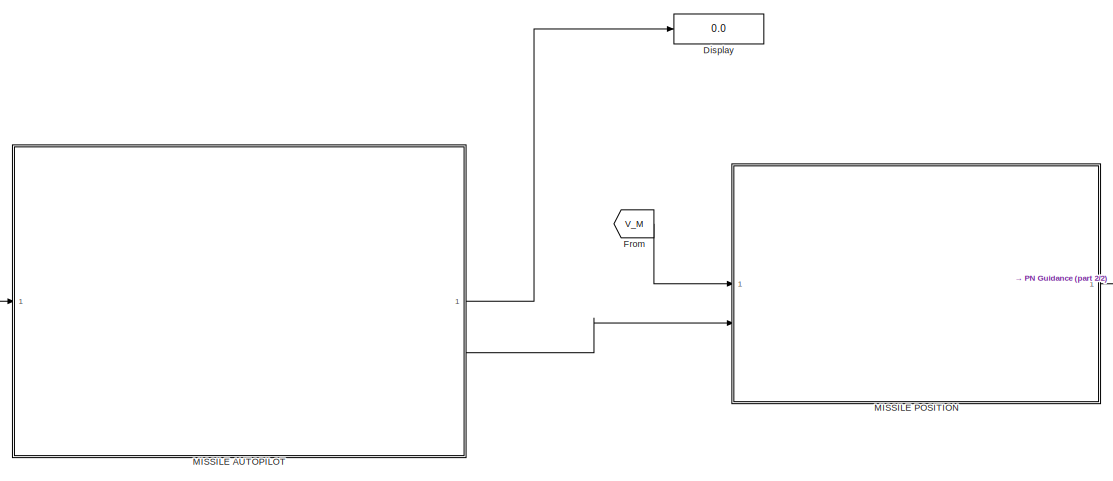
[diagram: root canvas - part 1/2, middle right region]
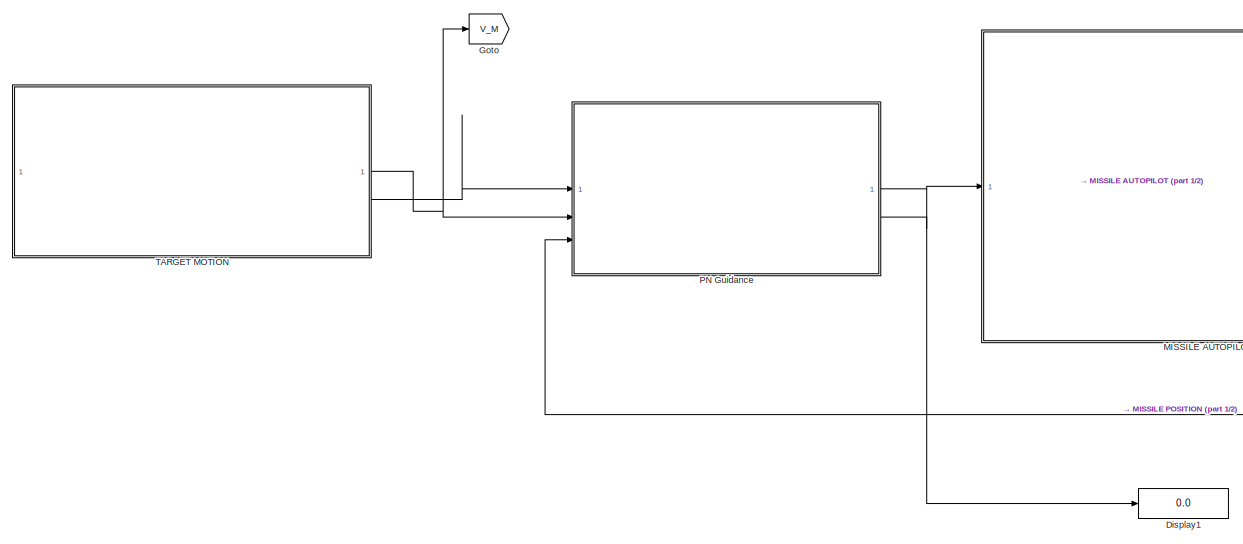
[diagram: root canvas - part 2/2, left side, full height]
MODEL slx_08480096c855
KIND model
CONFIG AbsTol = auto
CONFIG EnableMultiTasking = off
CONFIG FixedStep = auto
CONFIG MaxStep = auto
CONFIG MinStep = auto
CONFIG RelTol = 1e-3
CONFIG SampleTimeConstraint = Unconstrained
CONFIG SolverName = ode4
CONFIG StartTime = 0.0
CONFIG StopTime = 40
BLOCK [Display] Display
  Decimation = 1
BLOCK [Display] Display1
  Decimation = 1
BLOCK [From] From
  GotoTag = V_M
BLOCK [Goto] Goto
  GotoTag = V_M
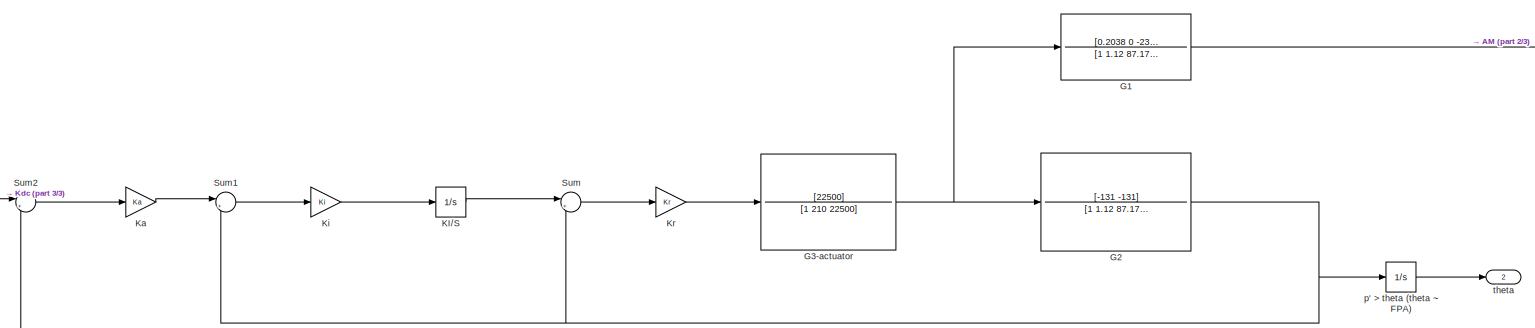
[diagram: MISSILE AUTOPILOT - part 1/3, full width, middle band]
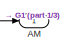
[diagram: MISSILE AUTOPILOT - part 2/3, top right region]
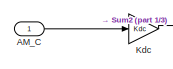
[diagram: MISSILE AUTOPILOT - part 3/3, middle left region]
BLOCK [SubSystem] MISSILE AUTOPILOT
BLOCK [Outport] MISSILE AUTOPILOT/AM
BLOCK [Inport] MISSILE AUTOPILOT/AM_C
BLOCK [TransferFcn] MISSILE AUTOPILOT/G1
  Denominator = [1 1.12 87.176]
  Numerator = [0.2038 0 -239.76]
BLOCK [TransferFcn] MISSILE AUTOPILOT/G2
  Denominator = [1 1.12 87.176]
  Numerator = [-131 -131]
BLOCK [TransferFcn] MISSILE AUTOPILOT/G3-actuator
  Denominator = [1 210 22500]
  Numerator = [22500]
BLOCK [Integrator] MISSILE AUTOPILOT/KI//S
BLOCK [Gain] MISSILE AUTOPILOT/Ka
  Gain = Ka
BLOCK [Gain] MISSILE AUTOPILOT/Kdc
  Gain = Kdc
BLOCK [Gain] MISSILE AUTOPILOT/Ki
  Gain = Ki
BLOCK [Gain] MISSILE AUTOPILOT/Kr
  Gain = Kr
BLOCK [Sum] MISSILE AUTOPILOT/Sum
  Inputs = |++
BLOCK [Sum] MISSILE AUTOPILOT/Sum1
  Inputs = |+-
BLOCK [Sum] MISSILE AUTOPILOT/Sum2
  Inputs = |+-
BLOCK [Integrator] MISSILE AUTOPILOT/p' > theta (theta ~ FPA)
  InitialCondition = l_M0
BLOCK [Outport] MISSILE AUTOPILOT/theta
  Port = 2
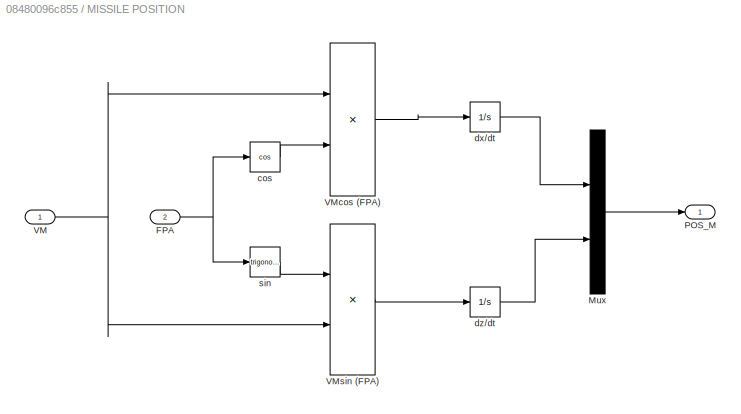
BLOCK [SubSystem] MISSILE POSITION
BLOCK [Inport] MISSILE POSITION/FPA
  Port = 2
BLOCK [Mux] MISSILE POSITION/Mux
  DisplayOption = bar
  Inputs = 2
BLOCK [Outport] MISSILE POSITION/POS_M
BLOCK [Inport] MISSILE POSITION/VM
BLOCK [Product] MISSILE POSITION/VMcos (FPA)
BLOCK [Product] MISSILE POSITION/VMsin (FPA)
BLOCK [Trigonometry] MISSILE POSITION/cos
  Operator = cos
BLOCK [Integrator] MISSILE POSITION/dx//dt
  InitialCondition = X_M0
BLOCK [Integrator] MISSILE POSITION/dz//dt
  InitialCondition = Z_M0
BLOCK [Trigonometry] MISSILE POSITION/sin
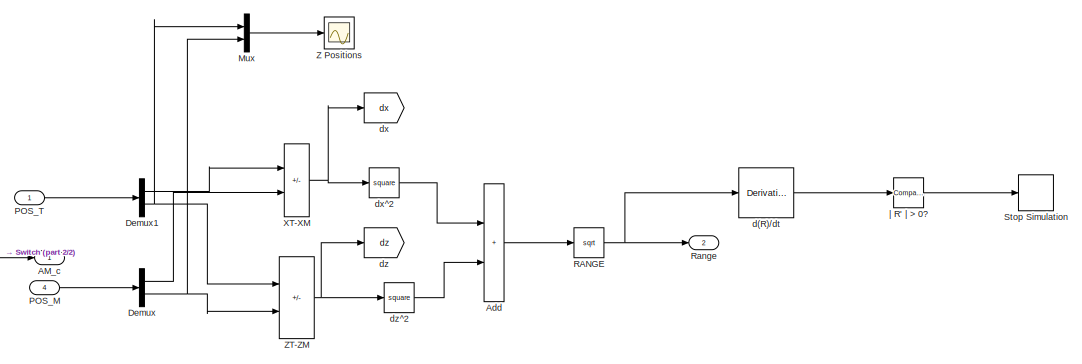
[diagram: PN Guidance - part 1/2, right side, full height]
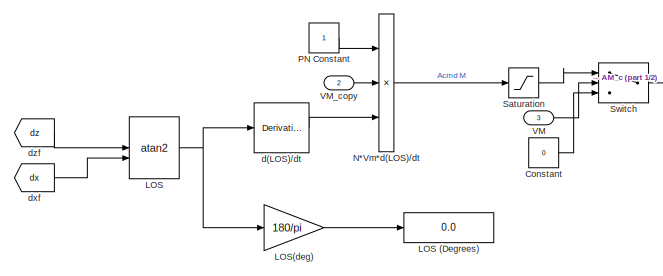
[diagram: PN Guidance - part 2/2, bottom left region]
BLOCK [SubSystem] PN Guidance
BLOCK [Outport] PN Guidance/AM_c
BLOCK [Sum] PN Guidance/Add
  IconShape = rectangular
BLOCK [Constant] PN Guidance/Constant
  Value = 0
BLOCK [Demux] PN Guidance/Demux
  Outputs = 2
BLOCK [Demux] PN Guidance/Demux1
  Outputs = 2
BLOCK [Trigonometry] PN Guidance/LOS
  Operator = atan2
BLOCK [Display] PN Guidance/LOS (Degrees)
  Decimation = 1
BLOCK [Gain] PN Guidance/LOS(deg)
  Gain = 180/pi
BLOCK [Mux] PN Guidance/Mux
  DisplayOption = bar
  Inputs = 2
BLOCK [Product] PN Guidance/N*Vm*d(LOS)//dt
  Inputs = 3
BLOCK [Constant] PN Guidance/PN Constant
BLOCK [Inport] PN Guidance/POS_M
  Port = 4
BLOCK [Inport] PN Guidance/POS_T
BLOCK [Sqrt] PN Guidance/RANGE
BLOCK [Outport] PN Guidance/Range
  Port = 2
BLOCK [Saturate] PN Guidance/Saturation
  LowerLimit = -0.1
  UpperLimit = 0
BLOCK [Stop] PN Guidance/Stop Simulation
BLOCK [Switch] PN Guidance/Switch
  Criteria = u2 > Threshold
  InputSameDT = off
  SaturateOnIntegerOverflow = off
  Threshold = 950
BLOCK [Inport] PN Guidance/VM
  Port = 3
BLOCK [Inport] PN Guidance/VM_copy
  Port = 2
BLOCK [Sum] PN Guidance/XT-XM
  IconShape = rectangular
  Inputs = +-
BLOCK [Scope] PN Guidance/Z Positions
  Floating = off
  NumInputPorts = 1
  ScopeSpecificationString = Simulink.scopes.TimeScopeBlockCfg('CurrentConfiguration', extmgr.ConfigurationSet(extmgr.Configuration('Core','General UI',true),extmgr.Configuration('Core','Source UI',true),extmgr.Configuration('Sources','WiredSimulink',true,'DataLoggingVariableName','ScopeData1'),extmgr.Configuration('Visuals','Time Domain',true),extmgr.Configuration('Tools','Plot Navigation',true),extmgr.Configuration('Tools',...<+40ch>
BLOCK [Sum] PN Guidance/ZT-ZM
  IconShape = rectangular
  Inputs = +-
BLOCK [Derivative] PN Guidance/d(LOS)//dt
BLOCK [Derivative] PN Guidance/d(R)//dt
BLOCK [Goto] PN Guidance/dx
  GotoTag = dx
BLOCK [Math] PN Guidance/dx^2
  Operator = square
BLOCK [From] PN Guidance/dxf
  GotoTag = dx
BLOCK [Goto] PN Guidance/dz
  GotoTag = dz
BLOCK [Math] PN Guidance/dz^2
  Operator = square
BLOCK [From] PN Guidance/dzf
  GotoTag = dz
BLOCK [Reference] PN Guidance/| R' | > 0?  REF=simulink/Logic and Bit
Operations/Compare
To Zero
  SourceBlock = simulink/Logic and Bit\nOperations/Compare\nTo Zero
  SourceType = Compare To Zero
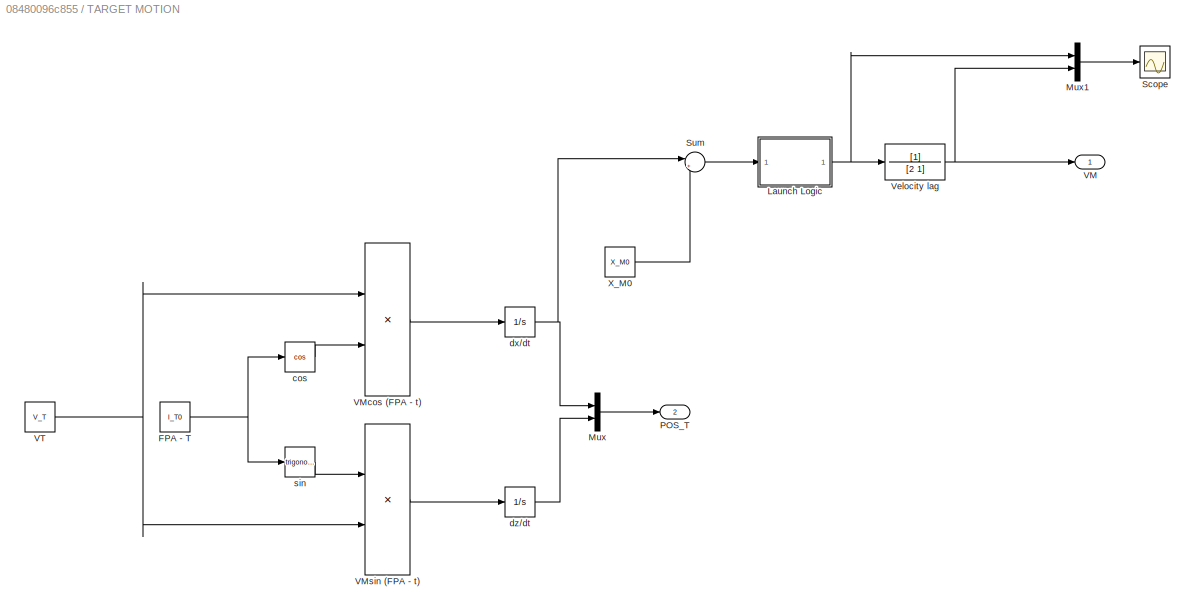
BLOCK [SubSystem] TARGET MOTION
BLOCK [Constant] TARGET MOTION/FPA - T
  Value = l_T0
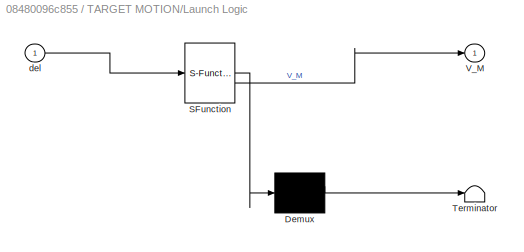
BLOCK [SubSystem] TARGET MOTION/Launch Logic
  ErrorFcn = Stateflow.Translate.translate
  PermitHierarchicalResolution = ExplicitOnly
  SFBlockType = MATLAB Function
  TreatAsAtomicUnit = on
BLOCK [Demux] TARGET MOTION/Launch Logic/ Demux 
  Outputs = 1
BLOCK [S-Function] TARGET MOTION/Launch Logic/ SFunction 
  EnableBusSupport = on
  FunctionName = sf_sfun
  PortCounts = [1 2]
  SFcnIsStateOwnerBlock = off
  SFunctionDeploymentMode = off
  Tag = Stateflow S-Function 2
BLOCK [Terminator] TARGET MOTION/Launch Logic/ Terminator 
BLOCK [Outport] TARGET MOTION/Launch Logic/V_M
BLOCK [Inport] TARGET MOTION/Launch Logic/del
BLOCK [Mux] TARGET MOTION/Mux
  DisplayOption = bar
  Inputs = 2
BLOCK [Mux] TARGET MOTION/Mux1
  DisplayOption = bar
  Inputs = 2
BLOCK [Outport] TARGET MOTION/POS_T
  Port = 2
BLOCK [Scope] TARGET MOTION/Scope
  Floating = off
  NumInputPorts = 1
  ScopeSpecificationString = Simulink.scopes.TimeScopeBlockCfg('CurrentConfiguration', extmgr.ConfigurationSet(extmgr.Configuration('Core','General UI',true),extmgr.Configuration('Core','Source UI',true),extmgr.Configuration('Sources','WiredSimulink',true),extmgr.Configuration('Visuals','Time Domain',true,'SerializedDisplays',{struct('MinYLimReal','-127.625','MaxYLimReal','1148.625','YLabelReal','','MinYLimMag',' 0.00000','Ma...<+1442ch>
BLOCK [Sum] TARGET MOTION/Sum
  Inputs = |+-
BLOCK [Outport] TARGET MOTION/VM
BLOCK [Product] TARGET MOTION/VMcos (FPA - t)
BLOCK [Product] TARGET MOTION/VMsin (FPA - t)
BLOCK [Constant] TARGET MOTION/VT
  Value = V_T
BLOCK [TransferFcn] TARGET MOTION/Velocity lag
  Denominator = [2 1]
BLOCK [Constant] TARGET MOTION/X_M0
  Value = X_M0
BLOCK [Trigonometry] TARGET MOTION/cos
  Operator = cos
BLOCK [Integrator] TARGET MOTION/dx//dt
  InitialCondition = V_T
BLOCK [Integrator] TARGET MOTION/dz//dt
  InitialCondition = Z_M0
BLOCK [Trigonometry] TARGET MOTION/sin
LINE From:1 -> MISSILE POSITION:1
LINE MISSILE AUTOPILOT/AM_C:1 -> MISSILE AUTOPILOT/Kdc:1
NET MISSILE AUTOPILOT/G1:1 -> MISSILE AUTOPILOT/AM:1, MISSILE AUTOPILOT/Sum2:2
NET MISSILE AUTOPILOT/G2:1 -> MISSILE AUTOPILOT/Sum1:2, MISSILE AUTOPILOT/Sum:2, MISSILE AUTOPILOT/p' > theta (theta ~ FPA):1
NET MISSILE AUTOPILOT/G3-actuator:1 -> MISSILE AUTOPILOT/G1:1, MISSILE AUTOPILOT/G2:1
LINE MISSILE AUTOPILOT/KI//S:1 -> MISSILE AUTOPILOT/Sum:1
LINE MISSILE AUTOPILOT/Ka:1 -> MISSILE AUTOPILOT/Sum1:1
LINE MISSILE AUTOPILOT/Kdc:1 -> MISSILE AUTOPILOT/Sum2:1
LINE MISSILE AUTOPILOT/Ki:1 -> MISSILE AUTOPILOT/KI//S:1
LINE MISSILE AUTOPILOT/Kr:1 -> MISSILE AUTOPILOT/G3-actuator:1
LINE MISSILE AUTOPILOT/Sum1:1 -> MISSILE AUTOPILOT/Ki:1
LINE MISSILE AUTOPILOT/Sum2:1 -> MISSILE AUTOPILOT/Ka:1
LINE MISSILE AUTOPILOT/Sum:1 -> MISSILE AUTOPILOT/Kr:1
LINE MISSILE AUTOPILOT/p' > theta (theta ~ FPA):1 -> MISSILE AUTOPILOT/theta:1
LINE MISSILE AUTOPILOT:1 -> Display:1
LINE MISSILE AUTOPILOT:2 -> MISSILE POSITION:2
NET MISSILE POSITION/FPA:1 -> MISSILE POSITION/cos:1, MISSILE POSITION/sin:1
LINE MISSILE POSITION/Mux:1 -> MISSILE POSITION/POS_M:1
NET MISSILE POSITION/VM:1 -> MISSILE POSITION/VMcos (FPA):1, MISSILE POSITION/VMsin (FPA):2
LINE MISSILE POSITION/VMcos (FPA):1 -> MISSILE POSITION/dx//dt:1
LINE MISSILE POSITION/VMsin (FPA):1 -> MISSILE POSITION/dz//dt:1
LINE MISSILE POSITION/cos:1 -> MISSILE POSITION/VMcos (FPA):2
LINE MISSILE POSITION/dx//dt:1 -> MISSILE POSITION/Mux:1
LINE MISSILE POSITION/dz//dt:1 -> MISSILE POSITION/Mux:2
LINE MISSILE POSITION/sin:1 -> MISSILE POSITION/VMsin (FPA):1
LINE MISSILE POSITION:1 -> PN Guidance:4
LINE PN Guidance/Add:1 -> PN Guidance/RANGE:1
LINE PN Guidance/Constant:1 -> PN Guidance/Switch:3
LINE PN Guidance/Demux1:1 -> PN Guidance/XT-XM:1
NET PN Guidance/Demux1:2 -> PN Guidance/Mux:1, PN Guidance/ZT-ZM:1
LINE PN Guidance/Demux:1 -> PN Guidance/XT-XM:2
NET PN Guidance/Demux:2 -> PN Guidance/Mux:2, PN Guidance/ZT-ZM:2
LINE PN Guidance/LOS(deg):1 -> PN Guidance/LOS (Degrees):1
NET PN Guidance/LOS:1 -> PN Guidance/LOS(deg):1, PN Guidance/d(LOS)//dt:1
LINE PN Guidance/Mux:1 -> PN Guidance/Z Positions:1
LINE PN Guidance/N*Vm*d(LOS)//dt:1 -> PN Guidance/Saturation:1
LINE PN Guidance/PN Constant:1 -> PN Guidance/N*Vm*d(LOS)//dt:1
LINE PN Guidance/POS_M:1 -> PN Guidance/Demux:1
LINE PN Guidance/POS_T:1 -> PN Guidance/Demux1:1
NET PN Guidance/RANGE:1 -> PN Guidance/Range:1, PN Guidance/d(R)//dt:1
LINE PN Guidance/Saturation:1 -> PN Guidance/Switch:1
LINE PN Guidance/Switch:1 -> PN Guidance/AM_c:1
LINE PN Guidance/VM:1 -> PN Guidance/Switch:2
LINE PN Guidance/VM_copy:1 -> PN Guidance/N*Vm*d(LOS)//dt:2
NET PN Guidance/XT-XM:1 -> PN Guidance/dx:1, PN Guidance/dx^2:1
NET PN Guidance/ZT-ZM:1 -> PN Guidance/dz:1, PN Guidance/dz^2:1
LINE PN Guidance/d(LOS)//dt:1 -> PN Guidance/N*Vm*d(LOS)//dt:3
LINE PN Guidance/d(R)//dt:1 -> PN Guidance/| R' | > 0?:1
LINE PN Guidance/dx^2:1 -> PN Guidance/Add:1
LINE PN Guidance/dxf:1 -> PN Guidance/LOS:2
LINE PN Guidance/dz^2:1 -> PN Guidance/Add:2
LINE PN Guidance/dzf:1 -> PN Guidance/LOS:1
LINE PN Guidance/| R' | > 0?:1 -> PN Guidance/Stop Simulation:1
LINE PN Guidance:1 -> MISSILE AUTOPILOT:1
LINE PN Guidance:2 -> Display1:1
NET TARGET MOTION/FPA - T:1 -> TARGET MOTION/cos:1, TARGET MOTION/sin:1
NET TARGET MOTION/Launch Logic:1 -> TARGET MOTION/Mux1:1, TARGET MOTION/Velocity lag:1
LINE TARGET MOTION/Mux1:1 -> TARGET MOTION/Scope:1
LINE TARGET MOTION/Mux:1 -> TARGET MOTION/POS_T:1
LINE TARGET MOTION/Sum:1 -> TARGET MOTION/Launch Logic:1
LINE TARGET MOTION/VMcos (FPA - t):1 -> TARGET MOTION/dx//dt:1
LINE TARGET MOTION/VMsin (FPA - t):1 -> TARGET MOTION/dz//dt:1
NET TARGET MOTION/VT:1 -> TARGET MOTION/VMcos (FPA - t):1, TARGET MOTION/VMsin (FPA - t):2
NET TARGET MOTION/Velocity lag:1 -> TARGET MOTION/Mux1:2, TARGET MOTION/VM:1
LINE TARGET MOTION/X_M0:1 -> TARGET MOTION/Sum:2
LINE TARGET MOTION/cos:1 -> TARGET MOTION/VMcos (FPA - t):2
NET TARGET MOTION/dx//dt:1 -> TARGET MOTION/Mux:1, TARGET MOTION/Sum:1
LINE TARGET MOTION/dz//dt:1 -> TARGET MOTION/Mux:2
LINE TARGET MOTION/sin:1 -> TARGET MOTION/VMsin (FPA - t):1
NET TARGET MOTION:1 -> Goto:1, PN Guidance:2
LINE TARGET MOTION:2 -> PN Guidance:1
note: NET lines group one-source signal fan-out (src -> all destinations, sorted); 1:1 wires keep LINE
CHART TARGET MOTION/Launch Logic states=1 transitions=1
  STATE_LABEL 'eML_blk_kernel()'
  STATE_LABEL 'SCRIPT:\nfunction V_M = fcn(del)\n%#codegen\n\npersistent f\npersistent Vel\n\nif isempty(f)\n    f = 0;\nend\nif isempty(Vel)\n    Vel = 0;\nend\n\nif f == 0 && del > -200\n    f = 1;\n    Vel = 1021; % missile speed\nend\n\nV_M = Vel;\n'
CHART  states=0 transitions=0
